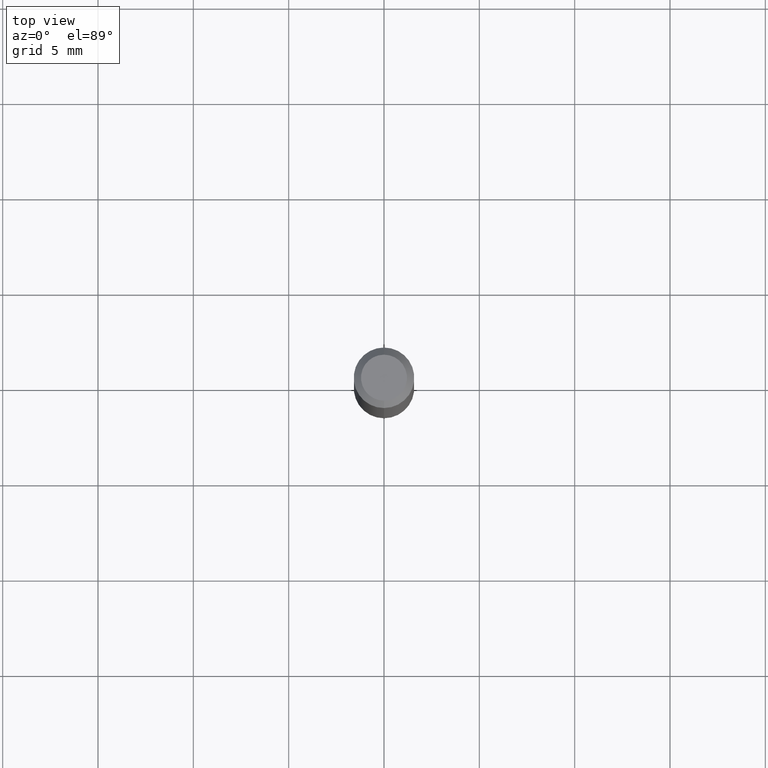
[diagram: clean part render]
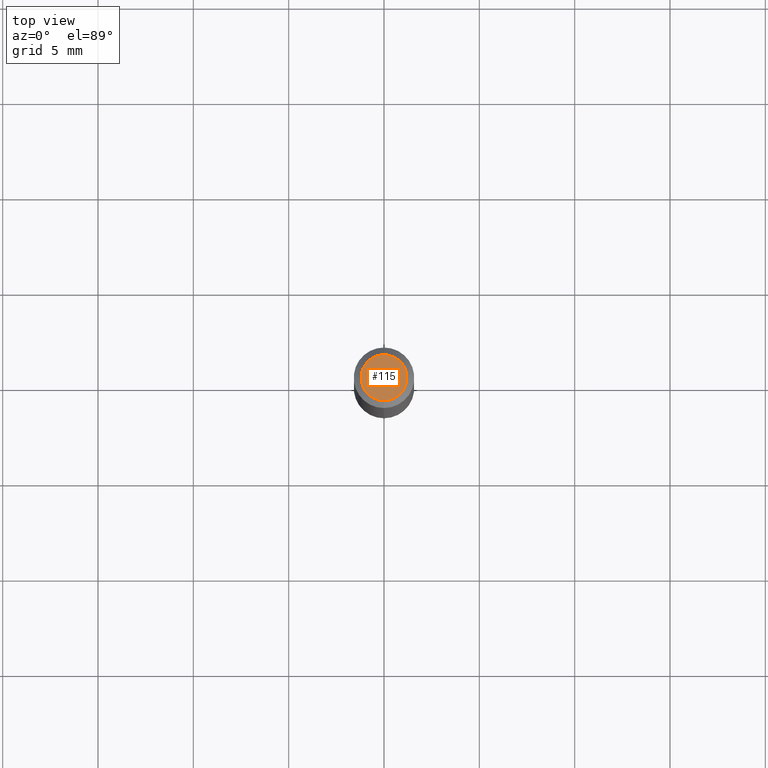
[diagram: same view with one face highlighted and labeled with its STEP entity id]
A machine part, top view. The second image highlights one B-rep face of the part: STEP entity #115.
In plain terms, the highlighted planar face has unit normal (0, -0, -1).
Its self-contained STEP definition (entity closure, byte-faithful):
#11 = DIRECTION ( 'NONE',  ( -2.445454428585171243E-29, 3.491501928384618052E-15, 1.000000000000000000 ) ) ;
#13 = FACE_OUTER_BOUND ( 'NONE', #307, .T. ) ;
#23 = DIRECTION ( 'NONE',  ( -6.982962677686266711E-15, -1.000000000000000000, 3.491501928384618447E-15 ) ) ;
#38 = CIRCLE ( 'NONE', #389, 0.04749999999999999362 ) ;
#56 = CARTESIAN_POINT ( 'NONE',  ( 3.840629472727447874E-16, 0.04749999999999999362, 7.364327909283748346E-17 ) ) ;
#68 = CARTESIAN_POINT ( 'NONE',  ( -5.856609535192501225E-45, 8.361784724711001985E-31, 2.394896206911068316E-16 ) ) ;
#76 = EDGE_CURVE ( 'NONE', #272, #130, #453, .T. ) ;
#81 = ORIENTED_EDGE ( 'NONE', *, *, #429, .T. ) ;
#108 = ORIENTED_EDGE ( 'NONE', *, *, #76, .T. ) ;
#115 = ADVANCED_FACE ( 'NONE', ( #13 ), #489, .F. ) ;
#123 = CARTESIAN_POINT ( 'NONE',  ( -5.856609535192501225E-45, 8.361784724711001985E-31, 2.394896206911068316E-16 ) ) ;
#130 = VERTEX_POINT ( 'NONE', #220 ) ;
#138 = DIRECTION ( 'NONE',  ( -6.982962677686266711E-15, -1.000000000000000000, 3.491501928384618447E-15 ) ) ;
#160 = DIRECTION ( 'NONE',  ( -2.445454428585171243E-29, 3.491501928384618052E-15, 1.000000000000000000 ) ) ;
#218 = CARTESIAN_POINT ( 'NONE',  ( 3.316907271900976096E-16, 0.04749999999999999362, -4.610153125271590767E-17 ) ) ;
#220 = CARTESIAN_POINT ( 'NONE',  ( -3.773273898774340269E-16, -0.04749999999999999362, 4.053359622893761920E-16 ) ) ;
#230 = AXIS2_PLACEMENT_3D ( 'NONE', #123, #11, #138 ) ;
#272 = VERTEX_POINT ( 'NONE', #56 ) ;
#307 = EDGE_LOOP ( 'NONE', ( #108, #81 ) ) ;
#363 = DIRECTION ( 'NONE',  ( 6.982962677686265922E-15, 1.000000000000000000, -3.491501928384618052E-15 ) ) ;
#389 = AXIS2_PLACEMENT_3D ( 'NONE', #68, #160, #23 ) ;
#401 = DIRECTION ( 'NONE',  ( 2.445454428585170963E-29, -3.491501928384618052E-15, -1.000000000000000000 ) ) ;
#429 = EDGE_CURVE ( 'NONE', #130, #272, #38, .T. ) ;
#453 = CIRCLE ( 'NONE', #230, 0.04749999999999999362 ) ;
#489 = PLANE ( 'NONE',  #510 ) ;
#510 = AXIS2_PLACEMENT_3D ( 'NONE', #218, #401, #363 ) ;